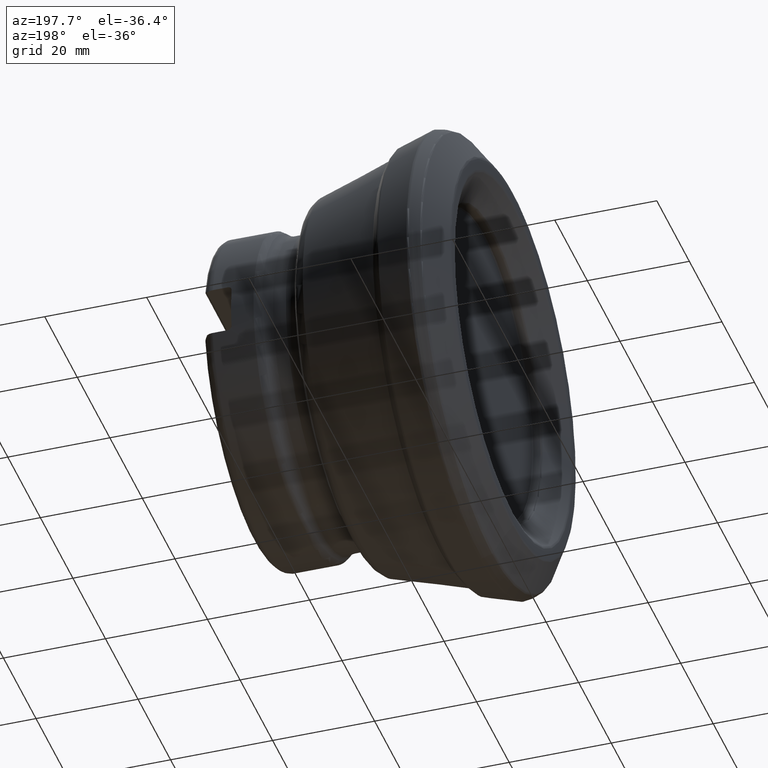
[diagram: clean part render]
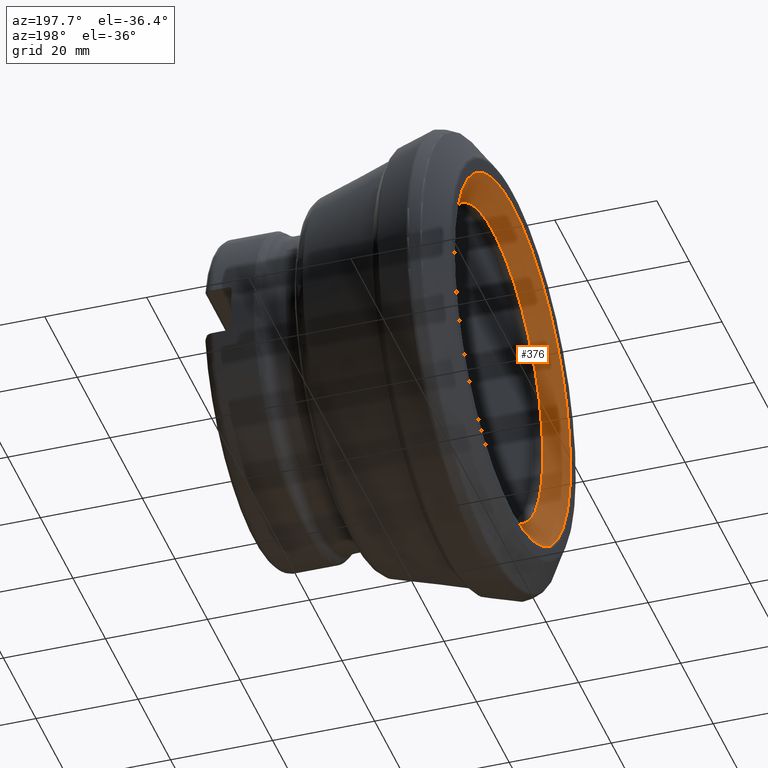
[diagram: same view with one face highlighted and labeled with its STEP entity id]
A machine part, auxiliary view. The second image highlights one B-rep face of the part: STEP entity #376.
In plain terms, the highlighted face is a SurfaceOfRevolution surface.
Its self-contained STEP definition (entity closure, byte-faithful):
#119=SURFACE_OF_REVOLUTION('',#564,#140);
#140=AXIS1_PLACEMENT('',#1942,#1381);
#305=FACE_BOUND('',#511,.T.);
#306=FACE_BOUND('',#512,.T.);
#376=ADVANCED_FACE('',(#305,#306),#119,.F.);
#511=EDGE_LOOP('',(#772));
#512=EDGE_LOOP('',(#773));
#564=B_SPLINE_CURVE_WITH_KNOTS('',3,(#1937,#1938,#1939,#1940,#1941),
 .UNSPECIFIED.,.F.,.F.,(4,1,4),(0.,0.5,1.),.UNSPECIFIED.);
#772=ORIENTED_EDGE('',*,*,#974,.T.);
#773=ORIENTED_EDGE('',*,*,#973,.F.);
#865=VERTEX_POINT('',#1928);
#866=VERTEX_POINT('',#1936);
#973=EDGE_CURVE('',#865,#865,#1029,.T.);
#974=EDGE_CURVE('',#866,#866,#1030,.T.);
#1029=CIRCLE('',#1133,35.6060010053973);
#1030=CIRCLE('',#1134,30.5773859073287);
#1133=AXIS2_PLACEMENT_3D('',#1927,#1376,#1377);
#1134=AXIS2_PLACEMENT_3D('',#1935,#1379,#1380);
#1376=DIRECTION('',(1.,0.,0.));
#1377=DIRECTION('',(0.,0.,-1.));
#1379=DIRECTION('',(1.,0.,0.));
#1380=DIRECTION('',(0.,0.,-1.));
#1381=DIRECTION('',(1.,0.,0.));
#1927=CARTESIAN_POINT('',(0.18734889571128,0.,0.));
#1928=CARTESIAN_POINT('',(0.18734889571128,0.,-35.6060010053973));
#1935=CARTESIAN_POINT('',(4.01896603602087,0.,0.));
#1936=CARTESIAN_POINT('',(4.01896603602087,0.,-30.5773859073287));
#1937=CARTESIAN_POINT('',(0.187348895711275,-35.130063733301,5.80223488757225));
#1938=CARTESIAN_POINT('',(0.846618438660356,-34.2705323431422,5.69152001156841));
#1939=CARTESIAN_POINT('',(2.15925495847563,-32.5213397038743,5.67264381771441));
#1940=CARTESIAN_POINT('',(3.41579398568135,-30.7722059892541,6.05260802931469));
#1941=CARTESIAN_POINT('',(4.01896603602087,-29.9127335237429,6.34073355876514));
#1942=CARTESIAN_POINT('',(0.,0.,0.));